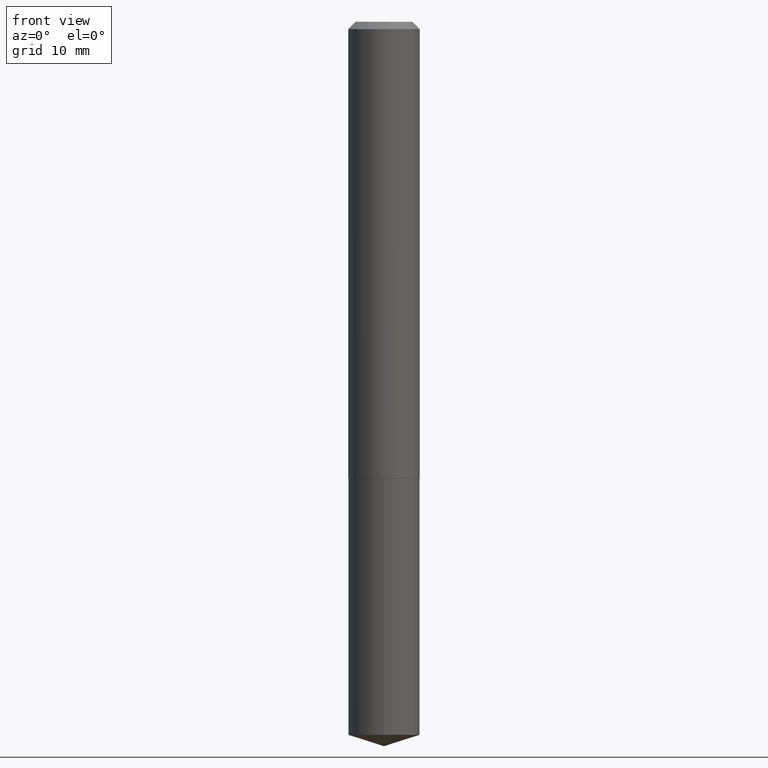
[diagram: clean part render]
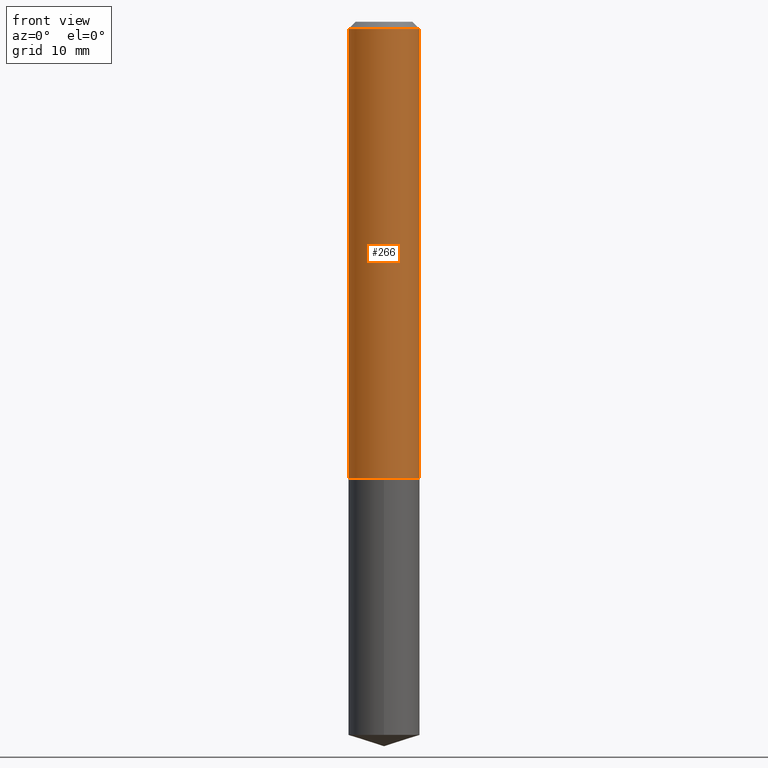
[diagram: same view with one face highlighted and labeled with its STEP entity id]
A machine part, front view. The second image highlights one B-rep face of the part: STEP entity #266.
In plain terms, the highlighted cylindrical surface (edge-blend (fillet) strip) has radius 3.9002 mm, axis along (-0, 0, 1).
Its self-contained STEP definition (entity closure, byte-faithful):
#6 = VECTOR ( 'NONE', #382, 39.37007874015748143 ) ;
#9 = VERTEX_POINT ( 'NONE', #154 ) ;
#24 = AXIS2_PLACEMENT_3D ( 'NONE', #169, #37, #134 ) ;
#27 = ORIENTED_EDGE ( 'NONE', *, *, #193, .T. ) ;
#37 = DIRECTION ( 'NONE',  ( -2.445468806185136597E-29, 3.491481338843145583E-15, 1.000000000000000000 ) ) ;
#85 = VECTOR ( 'NONE', #350, 39.37007874015748143 ) ;
#86 = CARTESIAN_POINT ( 'NONE',  ( -0.1535500000000002419, -5.752614201506813710E-15, -1.960099999999999953 ) ) ;
#99 = AXIS2_PLACEMENT_3D ( 'NONE', #307, #103, #105 ) ;
#103 = DIRECTION ( 'NONE',  ( -2.445468806185136597E-29, 3.491481338843145583E-15, 1.000000000000000000 ) ) ;
#104 = EDGE_CURVE ( 'NONE', #187, #129, #150, .T. ) ;
#105 = DIRECTION ( 'NONE',  ( 1.000000000000000000, -6.982962677686266711E-15, 0.000000000000000000 ) ) ;
#112 = FACE_OUTER_BOUND ( 'NONE', #116, .T. ) ;
#116 = EDGE_LOOP ( 'NONE', ( #367, #27, #227, #160 ) ) ;
#129 = VERTEX_POINT ( 'NONE', #339 ) ;
#132 = CARTESIAN_POINT ( 'NONE',  ( 0.1535500000000002419, -7.915886491425178171E-15, -1.960099999999999953 ) ) ;
#134 = DIRECTION ( 'NONE',  ( 1.000000000000000000, -6.982962677686270655E-15, 0.000000000000000000 ) ) ;
#144 = CARTESIAN_POINT ( 'NONE',  ( -0.1535500000000001308, 1.091038370759634765E-15, -7.553024831086413478E-30 ) ) ;
#149 = CIRCLE ( 'NONE', #24, 0.1535500000000002419 ) ;
#150 = LINE ( 'NONE', #267, #6 ) ;
#154 = CARTESIAN_POINT ( 'NONE',  ( -0.1535499999999999921, -2.385342311293013826E-15, -0.03125000000000021511 ) ) ;
#160 = ORIENTED_EDGE ( 'NONE', *, *, #239, .F. ) ;
#169 = CARTESIAN_POINT ( 'NONE',  ( 4.793363407003486357E-29, -6.843652572266448870E-15, -1.960099999999999953 ) ) ;
#187 = VERTEX_POINT ( 'NONE', #132 ) ;
#193 = EDGE_CURVE ( 'NONE', #345, #187, #149, .T. ) ;
#221 = DIRECTION ( 'NONE',  ( 1.000000000000000000, -6.982962677686266711E-15, 4.876176775795935793E-29 ) ) ;
#226 = CYLINDRICAL_SURFACE ( 'NONE', #228, 0.1535500000000001308 ) ;
#227 = ORIENTED_EDGE ( 'NONE', *, *, #104, .T. ) ;
#228 = AXIS2_PLACEMENT_3D ( 'NONE', #342, #363, #221 ) ;
#239 = EDGE_CURVE ( 'NONE', #9, #129, #360, .T. ) ;
#266 = ADVANCED_FACE ( 'NONE', ( #112 ), #226, .T. ) ;
#267 = CARTESIAN_POINT ( 'NONE',  ( 0.1535500000000001308, -1.072233919158727132E-15, 7.487369439234666187E-30 ) ) ;
#307 = CARTESIAN_POINT ( 'NONE',  ( 7.642090019328603538E-31, -1.091087918388490390E-16, -0.03125000000000021511 ) ) ;
#332 = EDGE_CURVE ( 'NONE', #345, #9, #346, .T. ) ;
#339 = CARTESIAN_POINT ( 'NONE',  ( 0.1535499999999999921, -1.181342710997575050E-15, -0.03125000000000021511 ) ) ;
#342 = CARTESIAN_POINT ( 'NONE',  ( 0.000000000000000000, 0.000000000000000000, 0.000000000000000000 ) ) ;
#345 = VERTEX_POINT ( 'NONE', #86 ) ;
#346 = LINE ( 'NONE', #144, #85 ) ;
#350 = DIRECTION ( 'NONE',  ( -2.445468806185136877E-29, 3.491481338843145188E-15, 1.000000000000000000 ) ) ;
#360 = CIRCLE ( 'NONE', #99, 0.1535499999999999921 ) ;
#363 = DIRECTION ( 'NONE',  ( -2.445468806185136597E-29, 3.491481338843145583E-15, 1.000000000000000000 ) ) ;
#367 = ORIENTED_EDGE ( 'NONE', *, *, #332, .F. ) ;
#382 = DIRECTION ( 'NONE',  ( -2.445468806185136877E-29, 3.491481338843145188E-15, 1.000000000000000000 ) ) ;